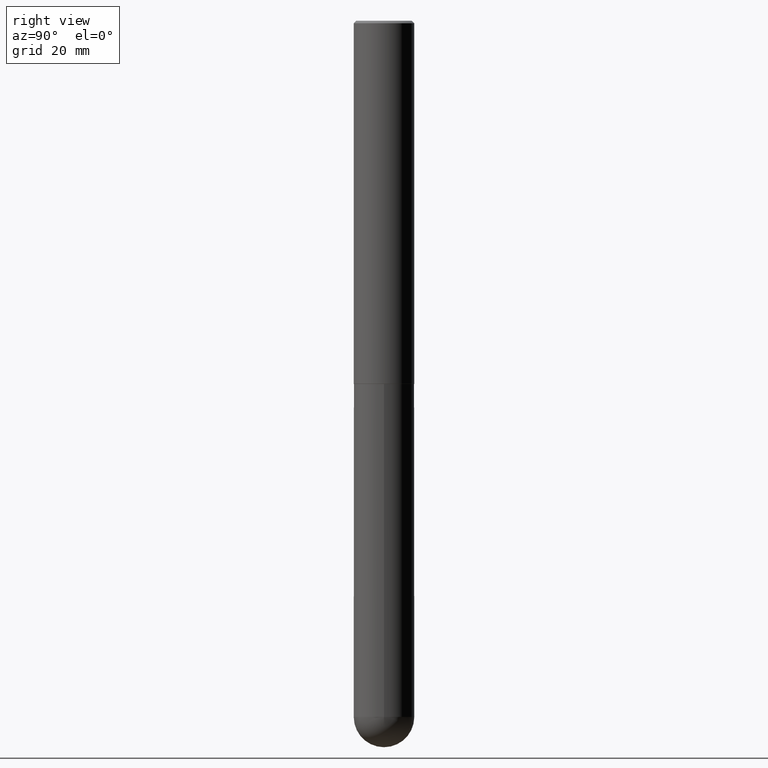
[diagram: clean part render]
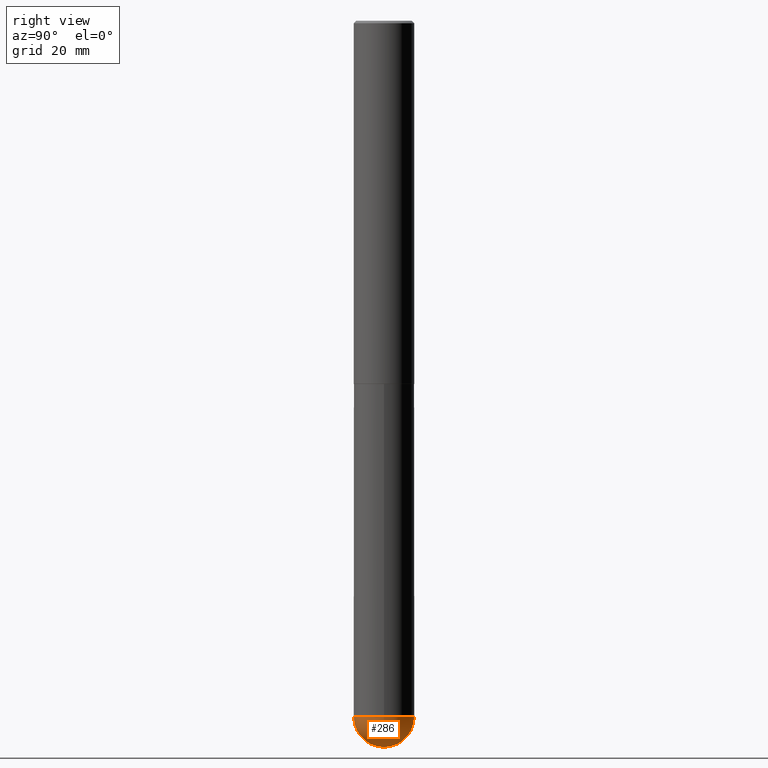
[diagram: same view with one face highlighted and labeled with its STEP entity id]
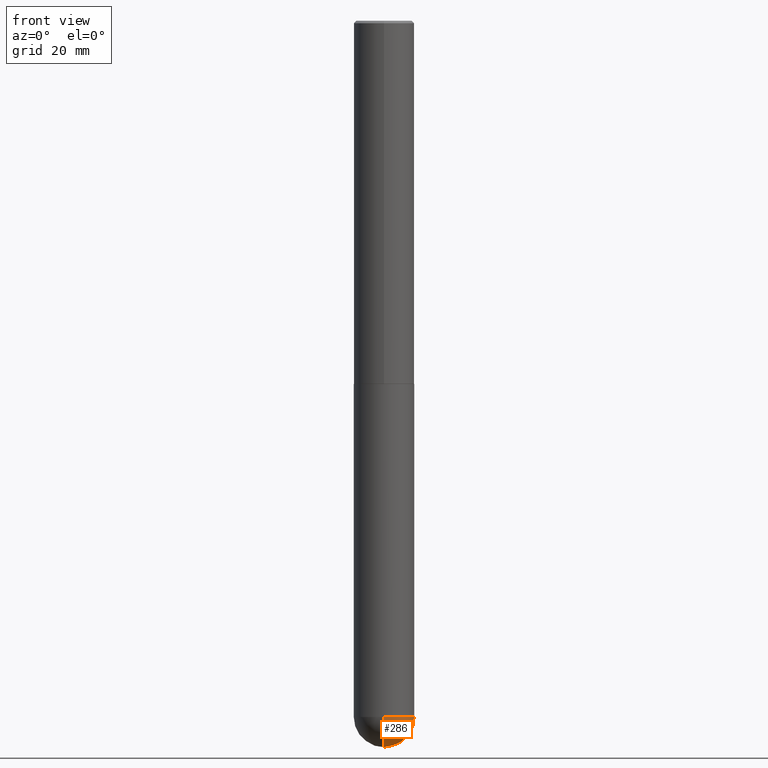
[diagram: same view with one face highlighted and labeled with its STEP entity id]
A machine part, right view. The second image highlights one B-rep face of the part: STEP entity #286.
A second angle (front view) of the same face is appended — the face is thin or edge-on in the first view.
In plain terms, the highlighted spherical surface has radius 6.35 mm.
Its self-contained STEP definition (entity closure, byte-faithful):
#8 = DIRECTION ( 'NONE',  ( -1.000000000000000000, 7.105427357601001070E-15, -4.926315508542082329E-29 ) ) ;
#9 = VERTEX_POINT ( 'NONE', #362 ) ;
#15 = DIRECTION ( 'NONE',  ( 1.000000000000000000, -6.982962677686262766E-15, 0.000000000000000000 ) ) ;
#24 = SPHERICAL_SURFACE ( 'NONE', #60, 0.2500000000000006661 ) ;
#33 = AXIS2_PLACEMENT_3D ( 'NONE', #164, #8, #133 ) ;
#41 = DIRECTION ( 'NONE',  ( 6.982962677686266711E-15, 1.000000000000000000, 0.000000000000000000 ) ) ;
#60 = AXIS2_PLACEMENT_3D ( 'NONE', #372, #215, #404 ) ;
#66 = DIRECTION ( 'NONE',  ( 1.000000000000000000, -6.982962677686265922E-15, 4.883557194083112340E-29 ) ) ;
#75 = ORIENTED_EDGE ( 'NONE', *, *, #248, .F. ) ;
#77 = DIRECTION ( 'NONE',  ( -2.445468806185136597E-29, 3.491481338843145583E-15, 1.000000000000000000 ) ) ;
#81 = CARTESIAN_POINT ( 'NONE',  ( 1.745740669421707884E-15, 0.2499999999999800160, -5.750000000000001776 ) ) ;
#89 = VERTEX_POINT ( 'NONE', #366 ) ;
#96 = CARTESIAN_POINT ( 'NONE',  ( 0.2500000000000000000, -1.702097152686033033E-14, -5.750000000000000888 ) ) ;
#122 = EDGE_CURVE ( 'NONE', #200, #277, #299, .T. ) ;
#128 = CIRCLE ( 'NONE', #33, 0.2500000000000006661 ) ;
#133 = DIRECTION ( 'NONE',  ( -7.105427357601001859E-15, -1.000000000000000000, 0.000000000000000000 ) ) ;
#143 = DIRECTION ( 'NONE',  ( -2.445468806185136597E-29, 3.491481338843145583E-15, 1.000000000000000000 ) ) ;
#161 = ORIENTED_EDGE ( 'NONE', *, *, #122, .F. ) ;
#164 = CARTESIAN_POINT ( 'NONE',  ( 1.373032585765065255E-28, -2.055020006648814124E-14, -5.750000000000000888 ) ) ;
#175 = EDGE_CURVE ( 'NONE', #89, #200, #353, .T. ) ;
#197 = ORIENTED_EDGE ( 'NONE', *, *, #405, .T. ) ;
#200 = VERTEX_POINT ( 'NONE', #96 ) ;
#206 = CARTESIAN_POINT ( 'NONE',  ( 1.406144563556453767E-28, -2.007601769834809252E-14, -5.750000000000000888 ) ) ;
#215 = DIRECTION ( 'NONE',  ( -1.000000000000000000, 6.982962677686265922E-15, -4.883557194083112340E-29 ) ) ;
#216 = CIRCLE ( 'NONE', #380, 0.2500000000000006661 ) ;
#232 = CARTESIAN_POINT ( 'NONE',  ( 1.406144563556453767E-28, -2.007601769834809252E-14, -5.750000000000000888 ) ) ;
#248 = EDGE_CURVE ( 'NONE', #9, #89, #128, .T. ) ;
#251 = ORIENTED_EDGE ( 'NONE', *, *, #175, .F. ) ;
#277 = VERTEX_POINT ( 'NONE', #81 ) ;
#286 = ADVANCED_FACE ( 'NONE', ( #333 ), #24, .T. ) ;
#290 = AXIS2_PLACEMENT_3D ( 'NONE', #206, #143, #15 ) ;
#299 = CIRCLE ( 'NONE', #290, 0.2500000000000000000 ) ;
#316 = CARTESIAN_POINT ( 'NONE',  ( 1.373032585765065255E-28, -2.055020006648814124E-14, -5.750000000000000888 ) ) ;
#333 = FACE_OUTER_BOUND ( 'NONE', #378, .T. ) ;
#338 = AXIS2_PLACEMENT_3D ( 'NONE', #232, #77, #358 ) ;
#353 = CIRCLE ( 'NONE', #338, 0.2500000000000000000 ) ;
#358 = DIRECTION ( 'NONE',  ( 1.000000000000000000, -6.982962677686262766E-15, 0.000000000000000000 ) ) ;
#362 = CARTESIAN_POINT ( 'NONE',  ( 1.435238263781167989E-28, -2.140776231620958900E-14, -6.000000000000001776 ) ) ;
#366 = CARTESIAN_POINT ( 'NONE',  ( -1.776356839400113597E-15, -0.2500000000000206501, -5.750000000000000000 ) ) ;
#372 = CARTESIAN_POINT ( 'NONE',  ( 1.373032585765065255E-28, -2.055020006648814124E-14, -5.750000000000000888 ) ) ;
#378 = EDGE_LOOP ( 'NONE', ( #75, #197, #161, #251 ) ) ;
#380 = AXIS2_PLACEMENT_3D ( 'NONE', #316, #66, #41 ) ;
#404 = DIRECTION ( 'NONE',  ( 6.982962677686265922E-15, 1.000000000000000000, -4.370956789862809317E-15 ) ) ;
#405 = EDGE_CURVE ( 'NONE', #9, #277, #216, .T. ) ;